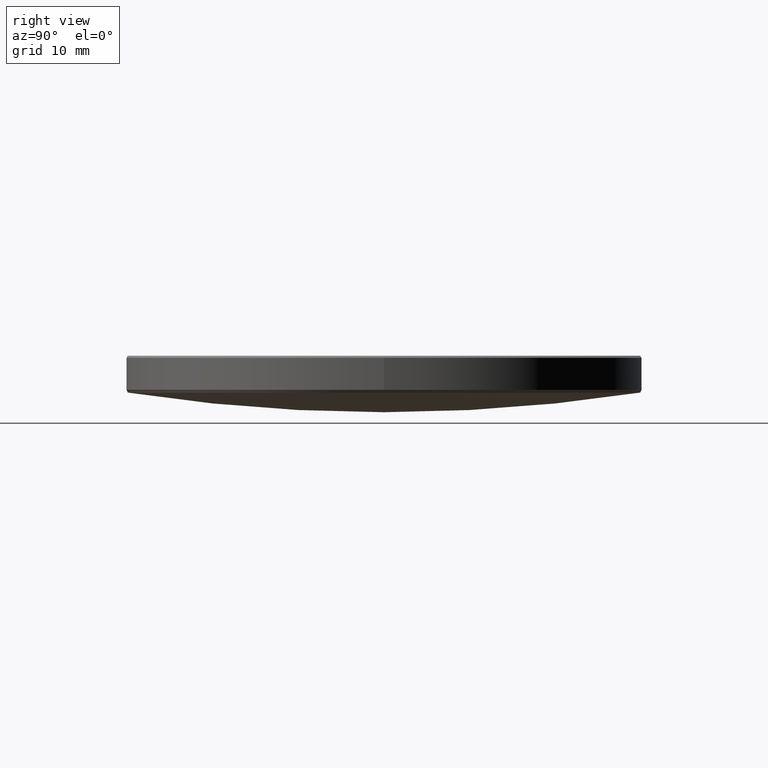
[diagram: clean part render]
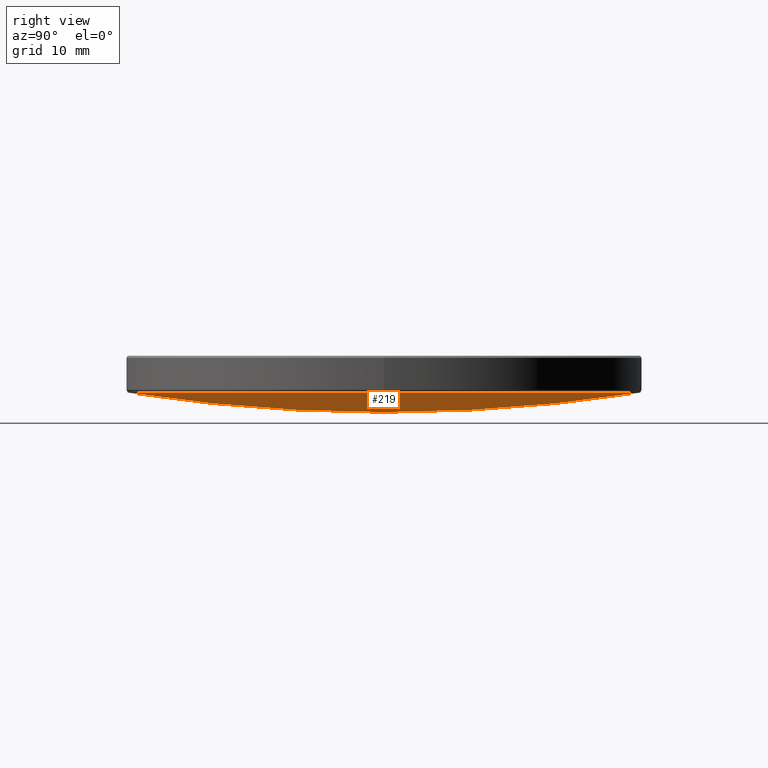
[diagram: same view with one face highlighted and labeled with its STEP entity id]
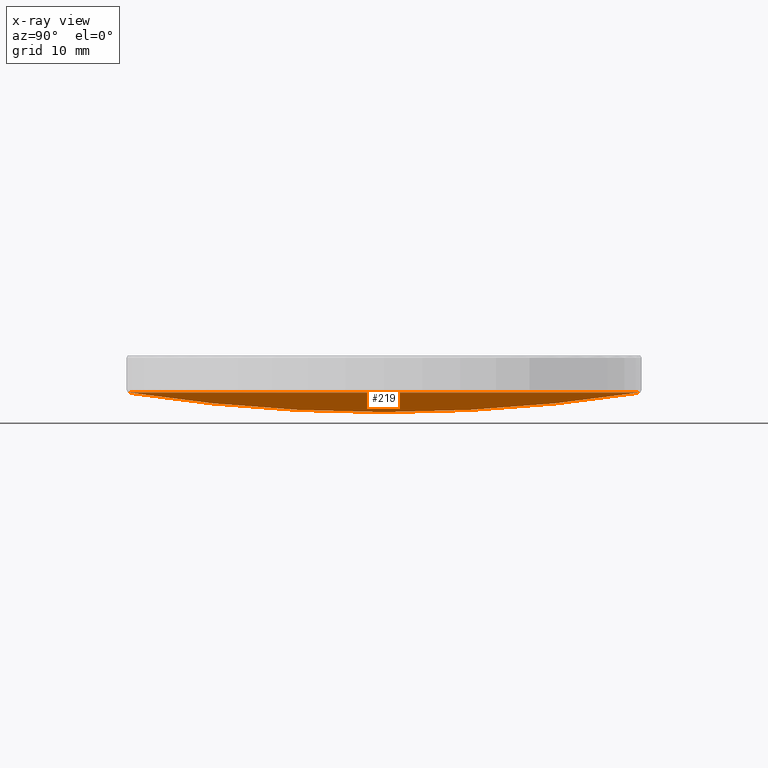
[diagram: x-ray of the same camera — body ghosted, the highlighted face saturated]
A machine part, right view. The second image highlights one B-rep face of the part: STEP entity #219.
The next image is the same camera in x-ray: the body ghosted, the highlighted face saturated — about 0% of this face is hidden behind the body in this view.
In plain terms, the highlighted spherical surface has radius 165.37 mm.
Its self-contained STEP definition (entity closure, byte-faithful):
#6 = VERTEX_POINT ( 'NONE', #119 ) ;
#20 = AXIS2_PLACEMENT_3D ( 'NONE', #79, #304, #155 ) ;
#46 = DIRECTION ( 'NONE',  ( 0.000000000000000000, 1.000000000000000000, 0.000000000000000000 ) ) ;
#56 = AXIS2_PLACEMENT_3D ( 'NONE', #122, #177, #321 ) ;
#78 = AXIS2_PLACEMENT_3D ( 'NONE', #262, #114, #211 ) ;
#79 = CARTESIAN_POINT ( 'NONE',  ( 0.000000000000000000, 0.000000000000000000, 13.96941892127251350 ) ) ;
#83 = EDGE_CURVE ( 'NONE', #168, #319, #299, .T. ) ;
#94 = ORIENTED_EDGE ( 'NONE', *, *, #187, .T. ) ;
#101 = CIRCLE ( 'NONE', #78, 25.20247402996205821 ) ;
#114 = DIRECTION ( 'NONE',  ( 0.000000000000000000, 0.000000000000000000, -1.000000000000000000 ) ) ;
#118 = VERTEX_POINT ( 'NONE', #330 ) ;
#119 = CARTESIAN_POINT ( 'NONE',  ( 25.20247402996205821, 0.000000000000000000, 13.96941892127251350 ) ) ;
#122 = CARTESIAN_POINT ( 'NONE',  ( 0.000000000000000000, 0.000000000000000000, 177.4077014708915385 ) ) ;
#123 = FACE_OUTER_BOUND ( 'NONE', #198, .T. ) ;
#131 = SPHERICAL_SURFACE ( 'NONE', #216, 165.3700000000000045 ) ;
#143 = ORIENTED_EDGE ( 'NONE', *, *, #233, .T. ) ;
#155 = DIRECTION ( 'NONE',  ( 1.000000000000000000, 0.000000000000000000, 0.000000000000000000 ) ) ;
#161 = CIRCLE ( 'NONE', #295, 165.3700000000000045 ) ;
#168 = VERTEX_POINT ( 'NONE', #257 ) ;
#177 = DIRECTION ( 'NONE',  ( -1.000000000000000000, 1.224646799147353207E-16, 0.000000000000000000 ) ) ;
#187 = EDGE_CURVE ( 'NONE', #118, #6, #305, .T. ) ;
#194 = ORIENTED_EDGE ( 'NONE', *, *, #83, .F. ) ;
#198 = EDGE_LOOP ( 'NONE', ( #194, #143, #94, #271 ) ) ;
#203 = DIRECTION ( 'NONE',  ( 1.000000000000000000, -0.000000000000000000, 0.000000000000000000 ) ) ;
#211 = DIRECTION ( 'NONE',  ( 1.000000000000000000, 0.000000000000000000, 0.000000000000000000 ) ) ;
#216 = AXIS2_PLACEMENT_3D ( 'NONE', #232, #328, #46 ) ;
#219 = ADVANCED_FACE ( 'NONE', ( #123 ), #131, .T. ) ;
#228 = CARTESIAN_POINT ( 'NONE',  ( -3.086412915138717110E-15, -25.20247402996192321, 13.96941892127251350 ) ) ;
#232 = CARTESIAN_POINT ( 'NONE',  ( 0.000000000000000000, 0.000000000000000000, 177.4077014708915385 ) ) ;
#233 = EDGE_CURVE ( 'NONE', #168, #118, #161, .T. ) ;
#251 = DIRECTION ( 'NONE',  ( 0.000000000000000000, 0.000000000000000000, -1.000000000000000000 ) ) ;
#257 = CARTESIAN_POINT ( 'NONE',  ( 0.000000000000000000, 1.012599205874989125E-14, 12.03770147089153220 ) ) ;
#262 = CARTESIAN_POINT ( 'NONE',  ( 0.000000000000000000, 0.000000000000000000, 13.96941892127251350 ) ) ;
#271 = ORIENTED_EDGE ( 'NONE', *, *, #279, .T. ) ;
#279 = EDGE_CURVE ( 'NONE', #6, #319, #101, .T. ) ;
#295 = AXIS2_PLACEMENT_3D ( 'NONE', #327, #203, #251 ) ;
#299 = CIRCLE ( 'NONE', #56, 165.3700000000000045 ) ;
#304 = DIRECTION ( 'NONE',  ( 0.000000000000000000, 0.000000000000000000, -1.000000000000000000 ) ) ;
#305 = CIRCLE ( 'NONE', #20, 25.20247402996205821 ) ;
#319 = VERTEX_POINT ( 'NONE', #228 ) ;
#321 = DIRECTION ( 'NONE',  ( -1.224646799147353207E-16, -1.000000000000000000, 0.000000000000000000 ) ) ;
#327 = CARTESIAN_POINT ( 'NONE',  ( 0.000000000000000000, 0.000000000000000000, 177.4077014708915385 ) ) ;
#328 = DIRECTION ( 'NONE',  ( -1.000000000000000000, 0.000000000000000000, 0.000000000000000000 ) ) ;
#330 = CARTESIAN_POINT ( 'NONE',  ( 0.000000000000000000, 25.20247402996192321, 13.96941892127251350 ) ) ;